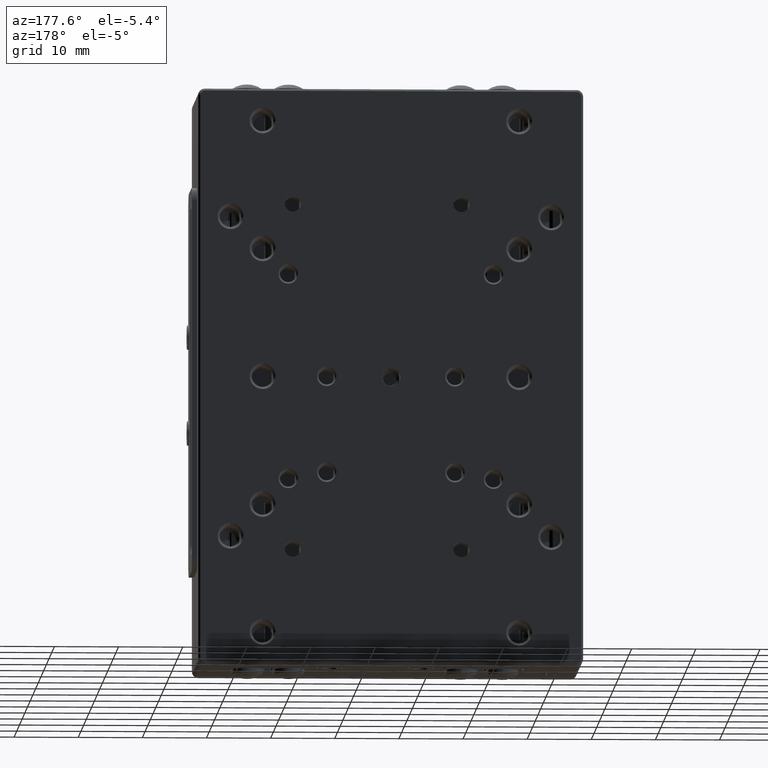
[diagram: clean part render]
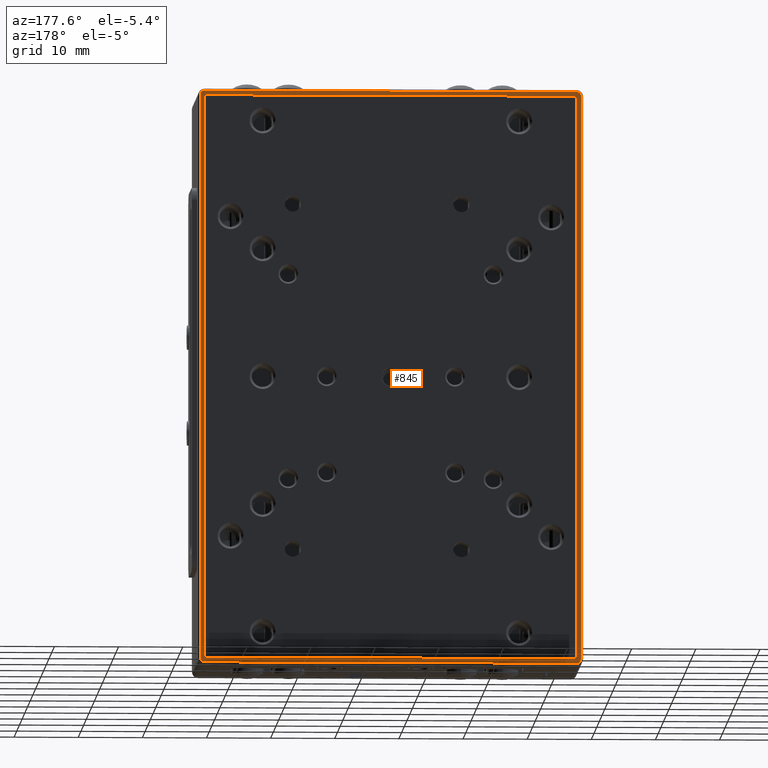
[diagram: same view with one face highlighted and labeled with its STEP entity id]
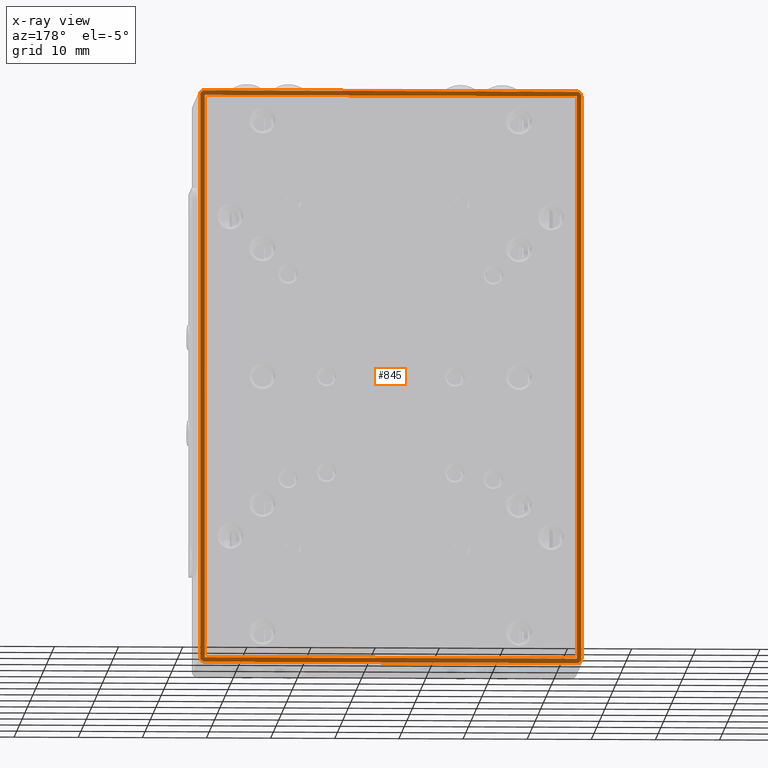
[diagram: x-ray of the same camera — body ghosted, the highlighted face saturated]
A machine part, auxiliary view. The second image highlights one B-rep face of the part: STEP entity #845.
The next image is the same camera in x-ray: the body ghosted, the highlighted face saturated — about 0% of this face is hidden behind the body in this view.
In plain terms, the highlighted planar face has unit normal (-0, -1, 0).
Its self-contained STEP definition (entity closure, byte-faithful):
#173 = CARTESIAN_POINT ( 'NONE',  ( 1.000000000000000000, 12.00000000000000000, 89.00000000000000000 ) ) ;
#740 = VERTEX_POINT ( 'NONE', #11720 ) ;
#845 = ADVANCED_FACE ( 'NONE', ( #12966, #21381 ), #17032, .F. ) ;
#1008 = ORIENTED_EDGE ( 'NONE', *, *, #15384, .F. ) ;
#1545 = VERTEX_POINT ( 'NONE', #19911 ) ;
#1858 = ORIENTED_EDGE ( 'NONE', *, *, #26622, .T. ) ;
#1977 = LINE ( 'NONE', #6463, #10198 ) ;
#2210 = VERTEX_POINT ( 'NONE', #8213 ) ;
#2314 = EDGE_CURVE ( 'NONE', #21107, #23959, #17198, .T. ) ;
#2455 = ORIENTED_EDGE ( 'NONE', *, *, #12255, .T. ) ;
#2640 = ORIENTED_EDGE ( 'NONE', *, *, #11933, .F. ) ;
#2978 = VECTOR ( 'NONE', #14517, 1000.000000000000000 ) ;
#3439 = VECTOR ( 'NONE', #7524, 1000.000000000000000 ) ;
#3775 = ORIENTED_EDGE ( 'NONE', *, *, #4909, .T. ) ;
#3840 = DIRECTION ( 'NONE',  ( 0.000000000000000000, 0.000000000000000000, -1.000000000000000000 ) ) ;
#4072 = ORIENTED_EDGE ( 'NONE', *, *, #9771, .F. ) ;
#4244 = CARTESIAN_POINT ( 'NONE',  ( 0.000000000000000000, 12.00000000000000000, 0.2999999999999944933 ) ) ;
#4909 = EDGE_CURVE ( 'NONE', #14379, #16579, #16789, .T. ) ;
#5140 = VERTEX_POINT ( 'NONE', #173 ) ;
#5635 = CARTESIAN_POINT ( 'NONE',  ( 59.00000000000000000, 12.00000000000000000, 1.000000000000000000 ) ) ;
#6288 = ORIENTED_EDGE ( 'NONE', *, *, #12073, .F. ) ;
#6463 = CARTESIAN_POINT ( 'NONE',  ( 1.000000000000000000, 12.00000000000000000, 89.00000000000000000 ) ) ;
#6586 = DIRECTION ( 'NONE',  ( 1.000000000000000000, 0.000000000000000000, 0.000000000000000000 ) ) ;
#6634 = AXIS2_PLACEMENT_3D ( 'NONE', #11417, #9289, #19421 ) ;
#6821 = DIRECTION ( 'NONE',  ( 0.000000000000000000, 0.000000000000000000, -1.000000000000000000 ) ) ;
#7311 = CIRCLE ( 'NONE', #23034, 0.6999999999999999556 ) ;
#7381 = CARTESIAN_POINT ( 'NONE',  ( 1.000000000000000000, 12.00000000000000000, 1.000000000000000000 ) ) ;
#7395 = CARTESIAN_POINT ( 'NONE',  ( 1.000000000000000000, 12.00000000000000000, 89.00000000000000000 ) ) ;
#7438 = EDGE_CURVE ( 'NONE', #2210, #1545, #19117, .T. ) ;
#7524 = DIRECTION ( 'NONE',  ( 0.000000000000000000, 0.000000000000000000, -1.000000000000000000 ) ) ;
#8213 = CARTESIAN_POINT ( 'NONE',  ( 1.000000000000000000, 12.00000000000000000, 89.70000000000000284 ) ) ;
#8295 = EDGE_CURVE ( 'NONE', #23959, #9204, #7311, .T. ) ;
#8611 = VERTEX_POINT ( 'NONE', #20097 ) ;
#9204 = VERTEX_POINT ( 'NONE', #24430 ) ;
#9289 = DIRECTION ( 'NONE',  ( 0.000000000000000000, 1.000000000000000000, 0.000000000000000000 ) ) ;
#9357 = CARTESIAN_POINT ( 'NONE',  ( 59.00000000000000000, 12.00000000000000000, 89.00000000000000000 ) ) ;
#9771 = EDGE_CURVE ( 'NONE', #8611, #5140, #22571, .T. ) ;
#9877 = LINE ( 'NONE', #5635, #2978 ) ;
#10198 = VECTOR ( 'NONE', #19912, 1000.000000000000000 ) ;
#10485 = DIRECTION ( 'NONE',  ( 0.000000000000000000, 1.000000000000000000, 0.000000000000000000 ) ) ;
#10593 = VECTOR ( 'NONE', #3840, 1000.000000000000000 ) ;
#10596 = VECTOR ( 'NONE', #13883, 1000.000000000000000 ) ;
#11417 = CARTESIAN_POINT ( 'NONE',  ( 59.00000000000000000, 12.00000000000000000, 1.000000000000000000 ) ) ;
#11720 = CARTESIAN_POINT ( 'NONE',  ( 0.2999999999999934941, 12.00000000000000000, 89.00000000000000000 ) ) ;
#11726 = CARTESIAN_POINT ( 'NONE',  ( 1.000000000000000000, 12.00000000000000000, 0.2999999999999999889 ) ) ;
#11850 = CARTESIAN_POINT ( 'NONE',  ( 59.00000000000000000, 12.00000000000000000, 1.000000000000000000 ) ) ;
#11856 = ORIENTED_EDGE ( 'NONE', *, *, #7438, .T. ) ;
#11933 = EDGE_CURVE ( 'NONE', #22750, #8611, #9877, .T. ) ;
#12073 = EDGE_CURVE ( 'NONE', #5140, #19532, #1977, .T. ) ;
#12255 = EDGE_CURVE ( 'NONE', #740, #2210, #16936, .T. ) ;
#12600 = ORIENTED_EDGE ( 'NONE', *, *, #16215, .T. ) ;
#12693 = CARTESIAN_POINT ( 'NONE',  ( 0.000000000000000000, 12.00000000000000000, 90.00000000000000000 ) ) ;
#12966 = FACE_OUTER_BOUND ( 'NONE', #25428, .T. ) ;
#13263 = CARTESIAN_POINT ( 'NONE',  ( 59.70000000000000284, 12.00000000000000000, 89.00000000000000000 ) ) ;
#13883 = DIRECTION ( 'NONE',  ( 0.000000000000000000, 0.000000000000000000, 1.000000000000000000 ) ) ;
#13944 = EDGE_CURVE ( 'NONE', #1545, #14379, #16571, .T. ) ;
#14379 = VERTEX_POINT ( 'NONE', #13263 ) ;
#14433 = LINE ( 'NONE', #22989, #3439 ) ;
#14517 = DIRECTION ( 'NONE',  ( -1.000000000000000000, 0.000000000000000000, 1.196361017915039732E-16 ) ) ;
#14694 = CARTESIAN_POINT ( 'NONE',  ( 59.70000000000000284, 12.00000000000000000, 90.00000000000000000 ) ) ;
#14920 = DIRECTION ( 'NONE',  ( 0.000000000000000000, 0.000000000000000000, -1.000000000000000000 ) ) ;
#15384 = EDGE_CURVE ( 'NONE', #19532, #22750, #14433, .T. ) ;
#15615 = CIRCLE ( 'NONE', #6634, 0.6999999999999999556 ) ;
#16215 = EDGE_CURVE ( 'NONE', #16579, #21107, #15615, .T. ) ;
#16243 = CARTESIAN_POINT ( 'NONE',  ( 0.2999999999999999889, 12.00000000000000000, 90.00000000000000000 ) ) ;
#16571 = CIRCLE ( 'NONE', #26002, 0.7000000000000061728 ) ;
#16579 = VERTEX_POINT ( 'NONE', #21770 ) ;
#16699 = VECTOR ( 'NONE', #6586, 1000.000000000000000 ) ;
#16789 = LINE ( 'NONE', #14694, #10593 ) ;
#16936 = CIRCLE ( 'NONE', #26362, 0.7000000000000061728 ) ;
#17032 = PLANE ( 'NONE',  #17708 ) ;
#17198 = LINE ( 'NONE', #4244, #23701 ) ;
#17211 = DIRECTION ( 'NONE',  ( 0.000000000000000000, 0.000000000000000000, -1.000000000000000000 ) ) ;
#17299 = DIRECTION ( 'NONE',  ( 0.000000000000000000, -1.000000000000000000, 0.000000000000000000 ) ) ;
#17708 = AXIS2_PLACEMENT_3D ( 'NONE', #12693, #17299, #14920 ) ;
#17833 = ORIENTED_EDGE ( 'NONE', *, *, #13944, .T. ) ;
#17951 = LINE ( 'NONE', #16243, #10596 ) ;
#17964 = DIRECTION ( 'NONE',  ( 0.000000000000000000, 1.000000000000000000, 0.000000000000000000 ) ) ;
#18447 = CARTESIAN_POINT ( 'NONE',  ( 59.00000000000000000, 12.00000000000000000, 0.2999999999999944933 ) ) ;
#18515 = DIRECTION ( 'NONE',  ( 0.000000000000000000, 0.000000000000000000, -1.000000000000000000 ) ) ;
#19117 = LINE ( 'NONE', #21226, #16699 ) ;
#19421 = DIRECTION ( 'NONE',  ( 0.000000000000000000, 0.000000000000000000, -1.000000000000000000 ) ) ;
#19453 = CARTESIAN_POINT ( 'NONE',  ( 1.000000000000000000, 12.00000000000000000, 1.000000000000000000 ) ) ;
#19532 = VERTEX_POINT ( 'NONE', #26188 ) ;
#19761 = DIRECTION ( 'NONE',  ( 0.000000000000000000, 1.000000000000000000, 0.000000000000000000 ) ) ;
#19768 = ORIENTED_EDGE ( 'NONE', *, *, #8295, .T. ) ;
#19911 = CARTESIAN_POINT ( 'NONE',  ( 59.00000000000000000, 12.00000000000000000, 89.70000000000000284 ) ) ;
#19912 = DIRECTION ( 'NONE',  ( 1.000000000000000000, 0.000000000000000000, 0.000000000000000000 ) ) ;
#20097 = CARTESIAN_POINT ( 'NONE',  ( 1.000000000000000000, 12.00000000000000000, 1.000000000000000000 ) ) ;
#21107 = VERTEX_POINT ( 'NONE', #18447 ) ;
#21226 = CARTESIAN_POINT ( 'NONE',  ( 59.00000000000000000, 12.00000000000000000, 89.70000000000000284 ) ) ;
#21381 = FACE_BOUND ( 'NONE', #25376, .T. ) ;
#21770 = CARTESIAN_POINT ( 'NONE',  ( 59.70000000000000284, 12.00000000000000000, 1.000000000000000000 ) ) ;
#22571 = LINE ( 'NONE', #7381, #23172 ) ;
#22750 = VERTEX_POINT ( 'NONE', #11850 ) ;
#22989 = CARTESIAN_POINT ( 'NONE',  ( 59.00000000000000000, 12.00000000000000000, 89.00000000000000000 ) ) ;
#23034 = AXIS2_PLACEMENT_3D ( 'NONE', #19453, #10485, #17211 ) ;
#23172 = VECTOR ( 'NONE', #24698, 1000.000000000000000 ) ;
#23701 = VECTOR ( 'NONE', #25768, 1000.000000000000000 ) ;
#23959 = VERTEX_POINT ( 'NONE', #11726 ) ;
#24430 = CARTESIAN_POINT ( 'NONE',  ( 0.2999999999999999889, 12.00000000000000000, 1.000000000000000000 ) ) ;
#24698 = DIRECTION ( 'NONE',  ( 1.256688881744561868E-16, 0.000000000000000000, 1.000000000000000000 ) ) ;
#24983 = ORIENTED_EDGE ( 'NONE', *, *, #2314, .T. ) ;
#25376 = EDGE_LOOP ( 'NONE', ( #6288, #4072, #2640, #1008 ) ) ;
#25428 = EDGE_LOOP ( 'NONE', ( #11856, #17833, #3775, #12600, #24983, #19768, #1858, #2455 ) ) ;
#25768 = DIRECTION ( 'NONE',  ( -1.000000000000000000, 0.000000000000000000, 0.000000000000000000 ) ) ;
#26002 = AXIS2_PLACEMENT_3D ( 'NONE', #9357, #19761, #6821 ) ;
#26188 = CARTESIAN_POINT ( 'NONE',  ( 59.00000000000000000, 12.00000000000000000, 89.00000000000000000 ) ) ;
#26362 = AXIS2_PLACEMENT_3D ( 'NONE', #7395, #17964, #18515 ) ;
#26622 = EDGE_CURVE ( 'NONE', #9204, #740, #17951, .T. ) ;